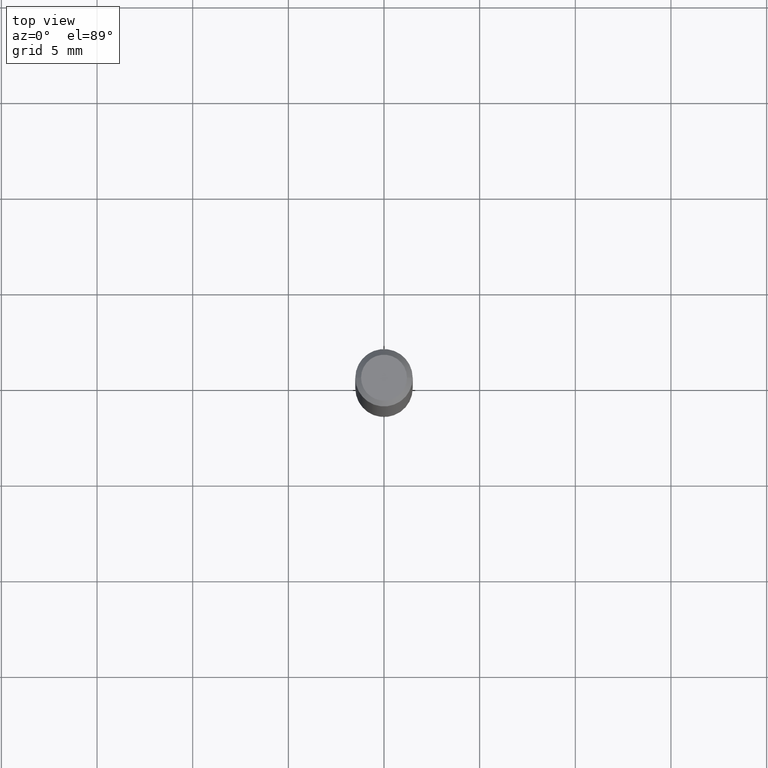
[diagram: clean part render]
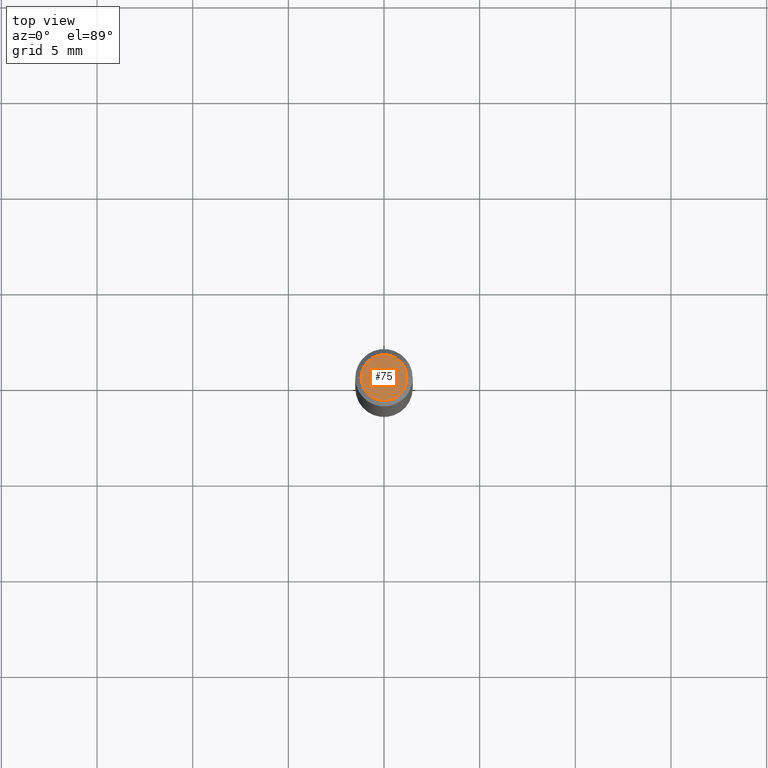
[diagram: same view with one face highlighted and labeled with its STEP entity id]
A machine part, top view. The second image highlights one B-rep face of the part: STEP entity #75.
In plain terms, the highlighted planar face has unit normal (0, -0, -1).
Its self-contained STEP definition (entity closure, byte-faithful):
#7 = DIRECTION ( 'NONE',  ( 2.438088387897960049E-29, -3.491481338843145188E-15, -1.000000000000000000 ) ) ;
#16 = ORIENTED_EDGE ( 'NONE', *, *, #320, .T. ) ;
#18 = CARTESIAN_POINT ( 'NONE',  ( 0.04724000000000000421, -3.852183633974369345E-16, -3.380025165621689721E-19 ) ) ;
#23 = DIRECTION ( 'NONE',  ( -2.445468806185136597E-29, 3.491481338843145583E-15, 1.000000000000000000 ) ) ;
#35 = AXIS2_PLACEMENT_3D ( 'NONE', #308, #373, #78 ) ;
#75 = ADVANCED_FACE ( 'NONE', ( #466 ), #353, .F. ) ;
#78 = DIRECTION ( 'NONE',  ( 1.000000000000000000, -6.982962677686266711E-15, 4.876185090822587894E-29 ) ) ;
#83 = CIRCLE ( 'NONE', #35, 0.04724000000000000421 ) ;
#117 = EDGE_LOOP ( 'NONE', ( #350, #16 ) ) ;
#120 = VERTEX_POINT ( 'NONE', #420 ) ;
#145 = AXIS2_PLACEMENT_3D ( 'NONE', #222, #23, #183 ) ;
#183 = DIRECTION ( 'NONE',  ( 1.000000000000000000, -6.982962677686266711E-15, 4.876185090822587894E-29 ) ) ;
#213 = CIRCLE ( 'NONE', #145, 0.04724000000000000421 ) ;
#214 = DIRECTION ( 'NONE',  ( -1.000000000000000000, 6.982962677686265922E-15, -4.876176775795935793E-29 ) ) ;
#222 = CARTESIAN_POINT ( 'NONE',  ( 8.265746106709734507E-48, -1.180129479067563789E-33, -3.380025165646692144E-19 ) ) ;
#240 = VERTEX_POINT ( 'NONE', #18 ) ;
#266 = EDGE_CURVE ( 'NONE', #120, #240, #213, .T. ) ;
#308 = CARTESIAN_POINT ( 'NONE',  ( 8.265746106709734507E-48, -1.180129479067563789E-33, -3.380025165646692144E-19 ) ) ;
#320 = EDGE_CURVE ( 'NONE', #240, #120, #83, .T. ) ;
#336 = AXIS2_PLACEMENT_3D ( 'NONE', #387, #7, #214 ) ;
#350 = ORIENTED_EDGE ( 'NONE', *, *, #266, .T. ) ;
#353 = PLANE ( 'NONE',  #336 ) ;
#373 = DIRECTION ( 'NONE',  ( -2.445468806185136597E-29, 3.491481338843145583E-15, 1.000000000000000000 ) ) ;
#387 = CARTESIAN_POINT ( 'NONE',  ( 4.132873053354867254E-48, -5.900647395337818946E-34, -1.690012582823346072E-19 ) ) ;
#420 = CARTESIAN_POINT ( 'NONE',  ( -0.04724000000000000421, 3.504923541997677355E-16, -3.380025165670481712E-19 ) ) ;
#466 = FACE_OUTER_BOUND ( 'NONE', #117, .T. ) ;